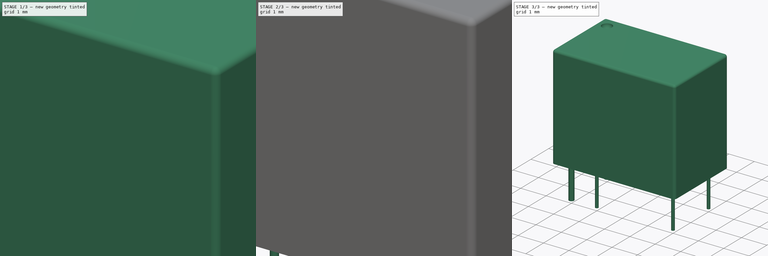
[diagram: build sequence overview — one tinted view per stage of 3, left to right]
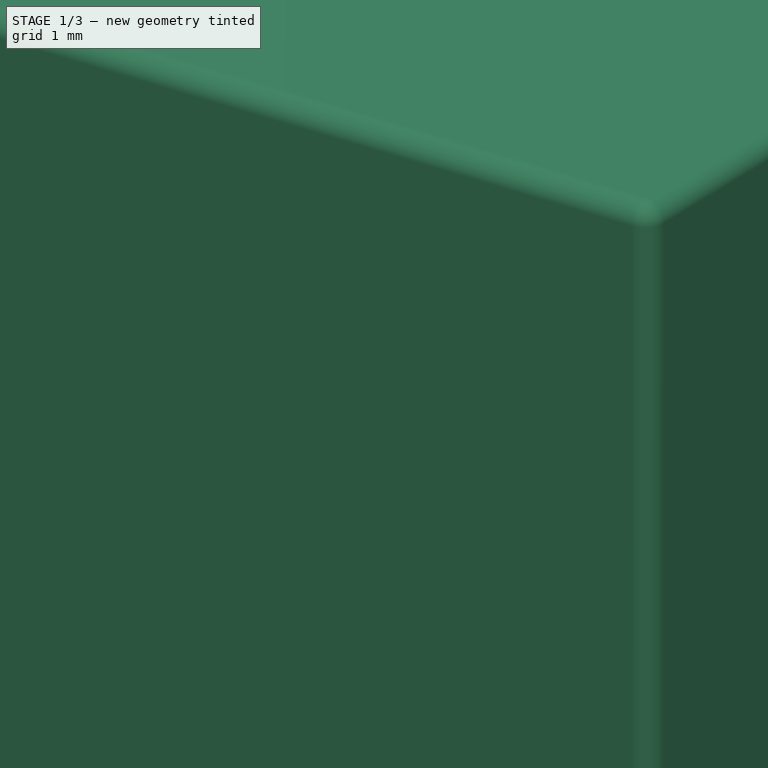
[diagram: stage 1 of 3 — iso view after this stage's code; geometry added in this stage tinted green]
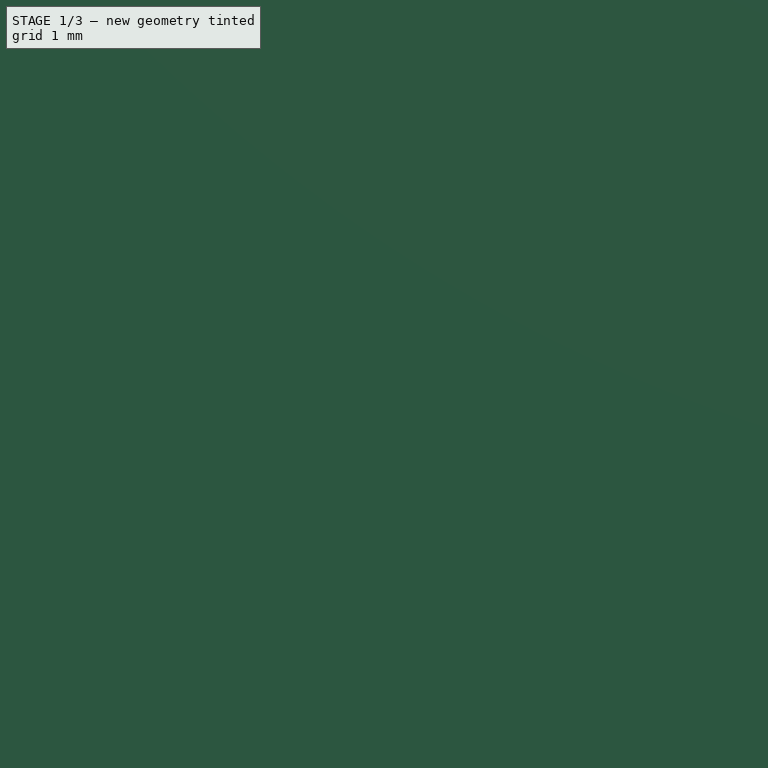
[diagram: stage 1 of 3 — front view after this stage's code; geometry added in this stage tinted green]
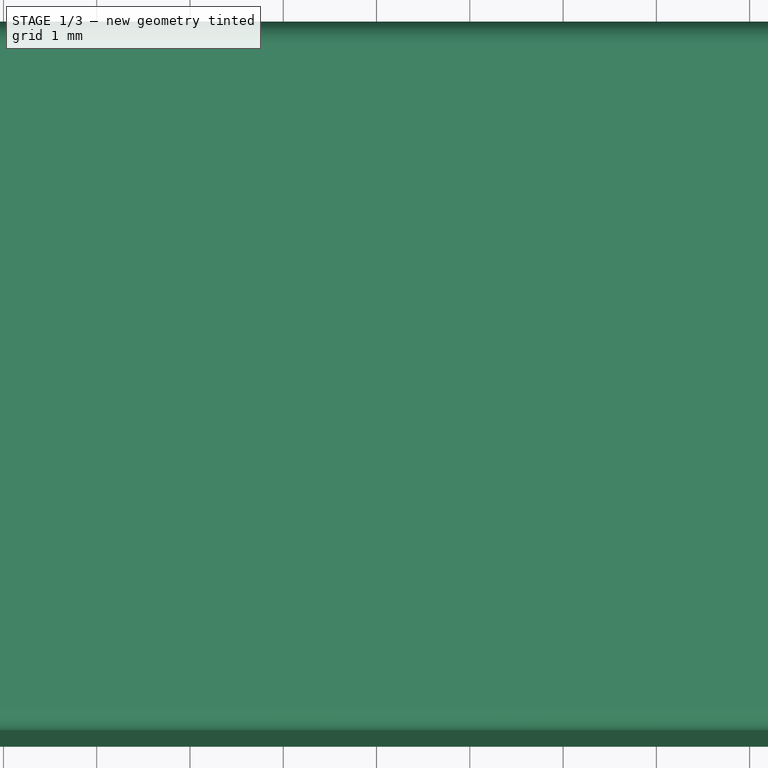
[diagram: stage 1 of 3 — top view after this stage's code; geometry added in this stage tinted green]
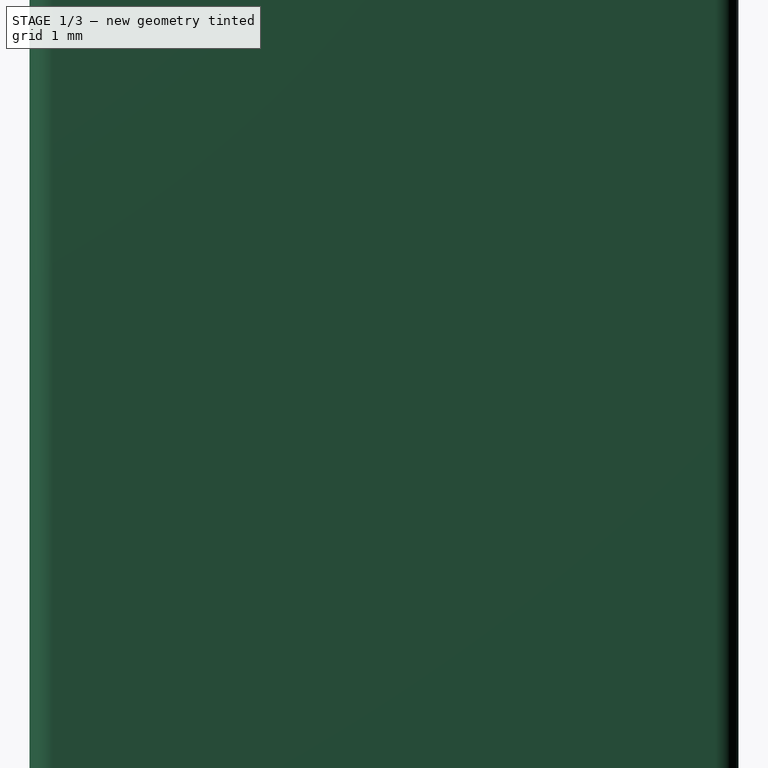
[diagram: stage 1 of 3 — right view after this stage's code; geometry added in this stage tinted green]
FCSTD DOCUMENT  (FreeCAD 0.17R13519 (Git))
Label: Relay_SPDT_HsinDa_Y14
License: Other
LicenseURL: https://opensource.org/licenses/MIT
objects: Sketcher::SketchObject×2, PartDesign::Pad×1, Part::Extrusion×1, PartDesign::Fillet×1, PartDesign::SubtractiveSphere×1, PartDesign::Body×1, App::Part×1, Part::Fuse×1, Part::FeaturePython×1
note: 11 computed .brp shape members not serialized (recipe doc carries the construction recipe); baked Part::Feature solids carry a one-line shape summary decoded from their .brp

FEATURE [Sketcher::SketchObject] Sketch
  MapMode = 5
  Support = -> [XY_Plane001]
  sketch-geometry (4):
    g0: LineSegment StartX=-1.07 StartY=1.26 StartZ=0 EndX=11.23 EndY=1.26 EndZ=0
    g1: LineSegment StartX=11.23 StartY=1.26 StartZ=0 EndX=11.23 EndY=-6.34 EndZ=0
    g2: LineSegment StartX=11.23 StartY=-6.34 StartZ=0 EndX=-1.07 EndY=-6.34 EndZ=0
    g3: LineSegment StartX=-1.07 StartY=-6.34 StartZ=0 EndX=-1.07 EndY=1.26 EndZ=0
  constraints (12):
    c: Coincident(g0,g1)
    c: Coincident(g1,g2)
    c: Coincident(g2,g3)
    c: Coincident(g3,g0)
    c: Horizontal(g0)
    c: Horizontal(g2)
    c: Vertical(g1)
    c: Vertical(g3)
    c: DistanceX(g0,g0) = 12.3
    c: DistanceY(g1,g1) = 7.6
    c: DistanceY(g-1,g0) = 1.26
    c: DistanceX(g0,g-1) = 1.07
FEATURE [Sketcher::SketchObject] Sketch001
  MapMode = 5
  sketch-geometry (6):
    g0: Circle CenterX=0 CenterY=0 CenterZ=0 NormalX=0 NormalY=0 NormalZ=1 AngleXU=0 Radius=0.25
    g1: Circle CenterX=2.54 CenterY=0 CenterZ=0 NormalX=0 NormalY=0 NormalZ=1 AngleXU=0 Radius=0.15
    g2: Circle CenterX=10.16 CenterY=0 CenterZ=0 NormalX=0 NormalY=0 NormalZ=1 AngleXU=0 Radius=0.15
    g3: Circle CenterX=10.16 CenterY=-5.08 CenterZ=0 NormalX=0 NormalY=0 NormalZ=1 AngleXU=0 Radius=0.15
    g4: Circle CenterX=0 CenterY=-5.08 CenterZ=0 NormalX=0 NormalY=0 NormalZ=1 AngleXU=0 Radius=0.25
    g5: Circle CenterX=2.54 CenterY=-5.08 CenterZ=0 NormalX=0 NormalY=0 NormalZ=1 AngleXU=0 Radius=0.15
  constraints (17):
    c: Coincident(g0,g-1)
    c: DistanceX(g-1,g1) = 2.54
    c: DistanceX(g1,g2) = 7.62
    c: PointOnObject(g1,g-1)
    c: PointOnObject(g2,g-1)
    c: PointOnObject(g4,g-2)
    c: DistanceY(g5,g-1) = 5.08
    c: DistanceY(g4,g-1) = 5.08
    c: DistanceY(g3,g-1) = 5.08
    c: DistanceX(g4,g5) = 2.54
    c: DistanceX(g5,g3) = 7.62
    c: Radius(g5) = 0.15
    c: Equal(g5,g3)
    c: Equal(g5,g2)
    c: Equal(g5,g1)
    c: Radius(g4) = 0.25
    c: Equal(g4,g0)
FEATURE [PartDesign::Pad] Pad
  Length = 10.3
  Length2 = 100
  Profile = -> Sketch
  Type = 0
FEATURE [PartDesign::Fillet] Fillet
  Base = -> Pad [Face6,Edge2,Edge1,Edge5,Edge8]
  BaseFeature = -> Pad
  Radius = 0.25
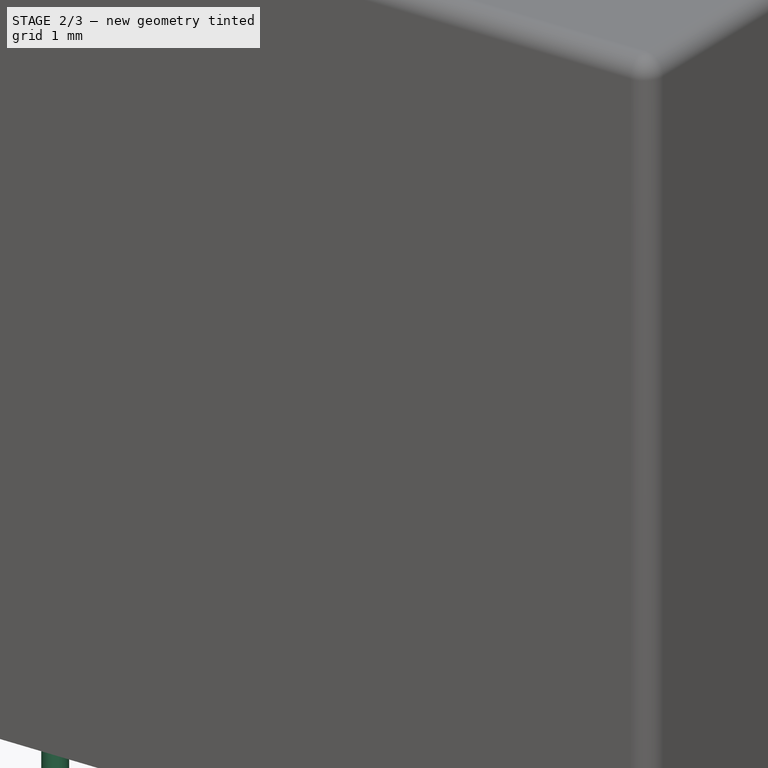
[diagram: stage 2 of 3 — iso view after this stage's code; geometry added in this stage tinted green]
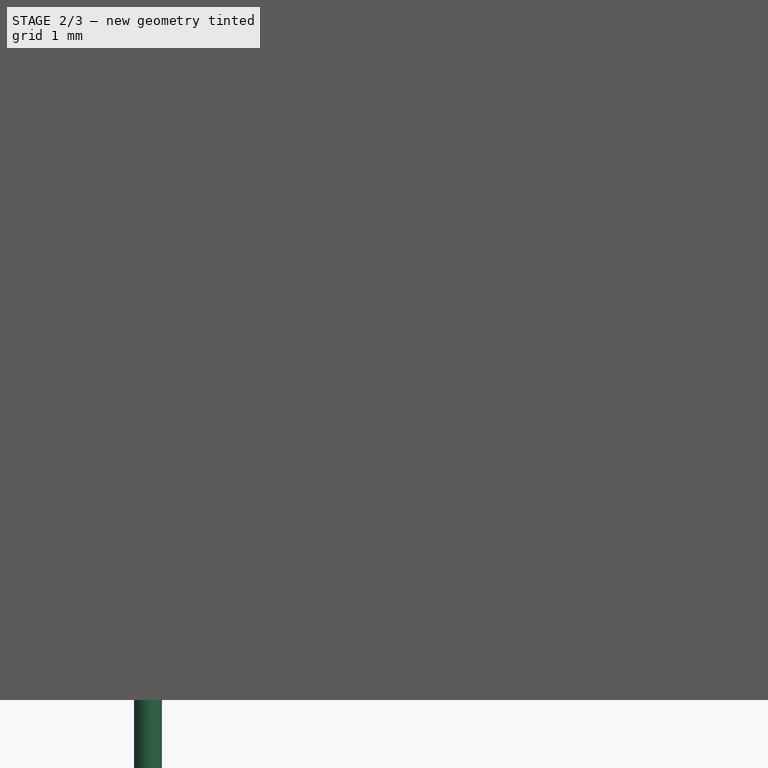
[diagram: stage 2 of 3 — front view after this stage's code; geometry added in this stage tinted green]
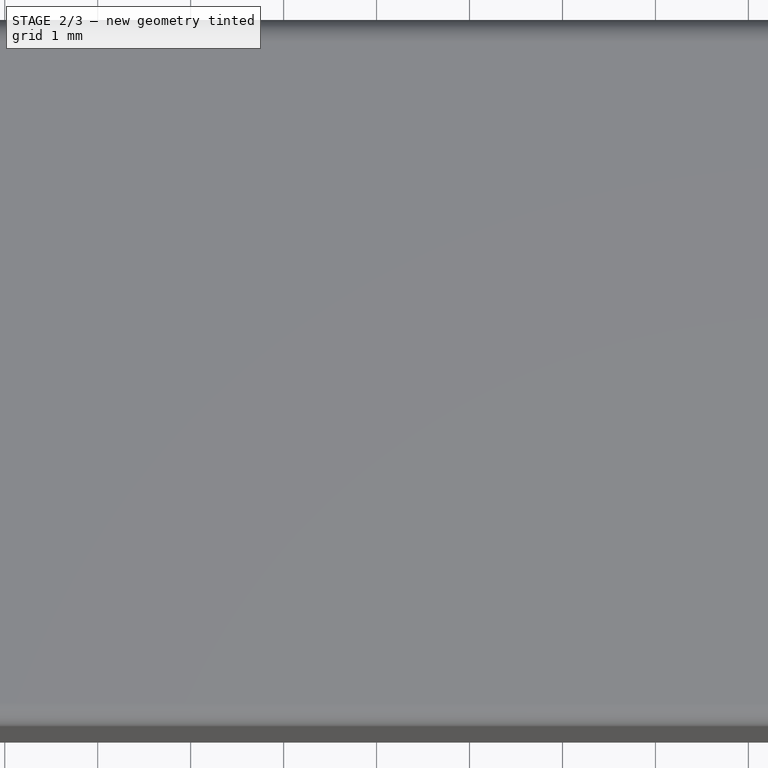
[diagram: stage 2 of 3 — top view after this stage's code; geometry added in this stage tinted green]
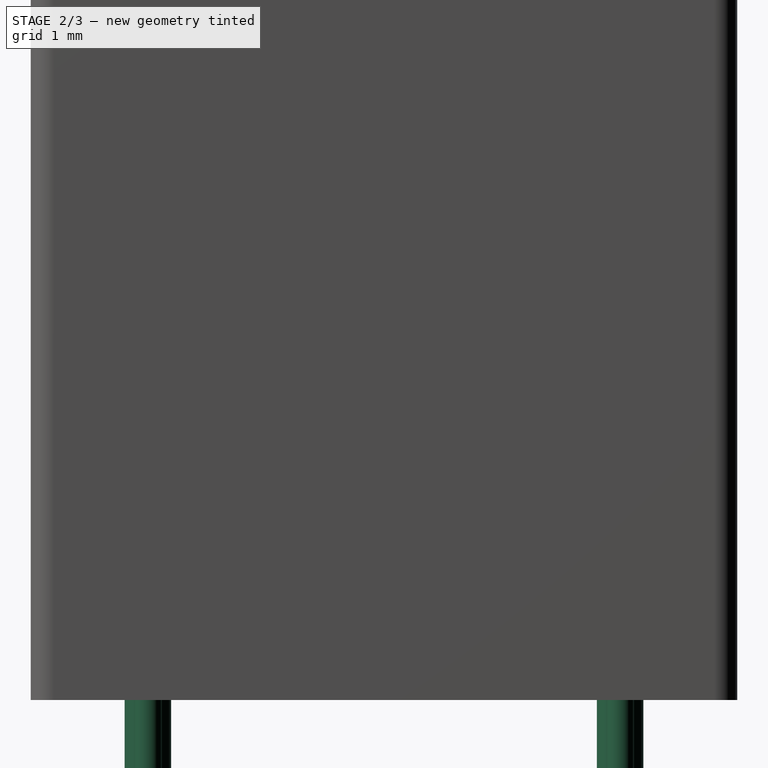
[diagram: stage 2 of 3 — right view after this stage's code; geometry added in this stage tinted green]
FEATURE [Part::Extrusion] Extrude
  Base = -> Sketch001
  Dir = (0,0,1)
  DirMode = 2
  FaceMakerClass = Part::FaceMakerBullseye
  LengthFwd = 3.5
  LengthRev = 0
  Reversed = true
  Solid = true
  Symmetric = false
FEATURE [PartDesign::SubtractiveSphere] Sphere
  Angle1 = -90
  Angle2 = 90
  Angle3 = 360
  AttacherType = Attacher::AttachEngine3D
  BaseFeature = -> Fillet
  MapMode = 5
  Placement = pos=(0,0,10.3) rot=(0,0,1;0rad)
  Radius = 0.5
  Support = -> [Fillet]
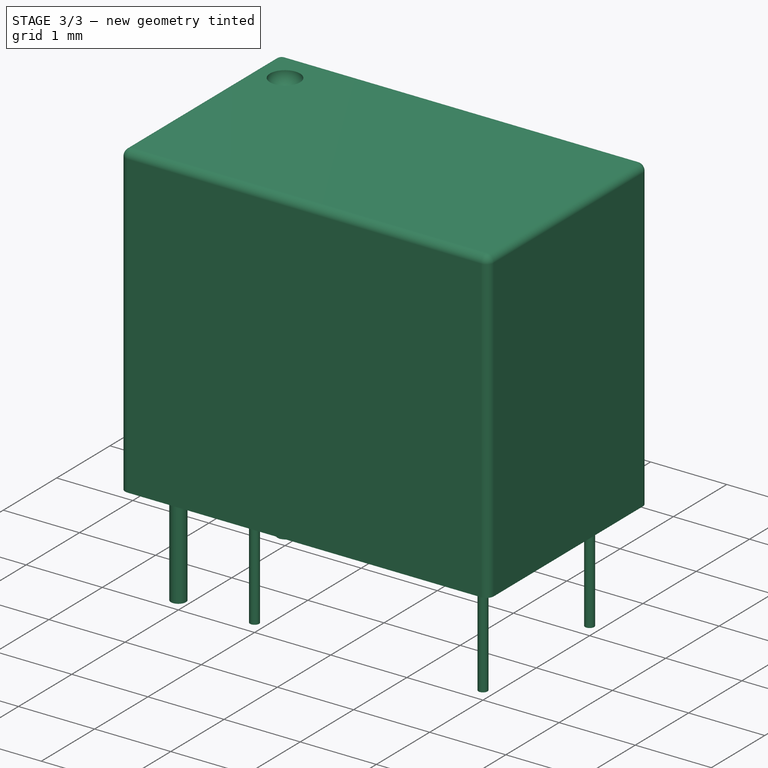
[diagram: stage 3 of 3 — iso view after this stage's code; geometry added in this stage tinted green]
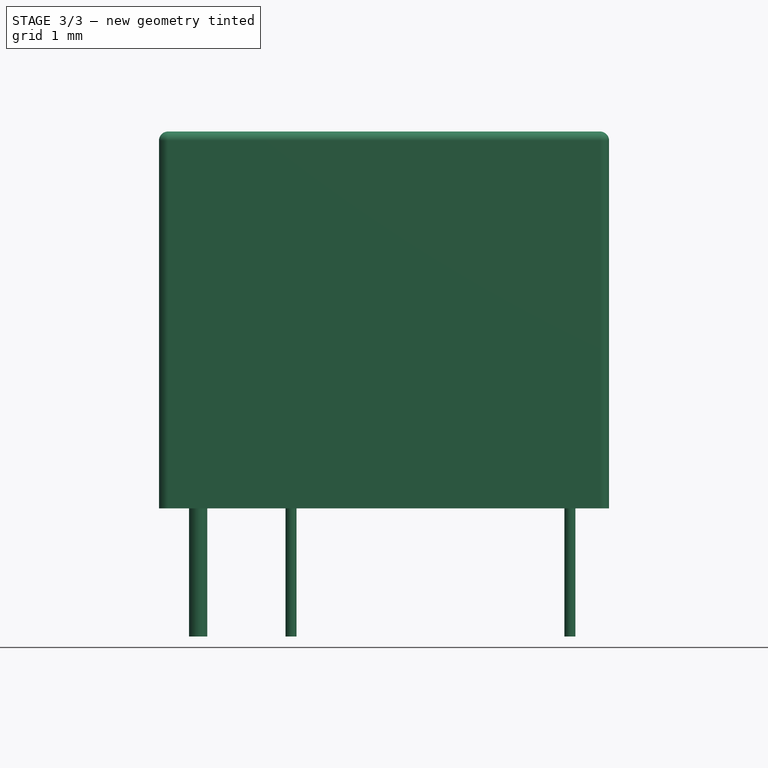
[diagram: stage 3 of 3 — front view after this stage's code; geometry added in this stage tinted green]
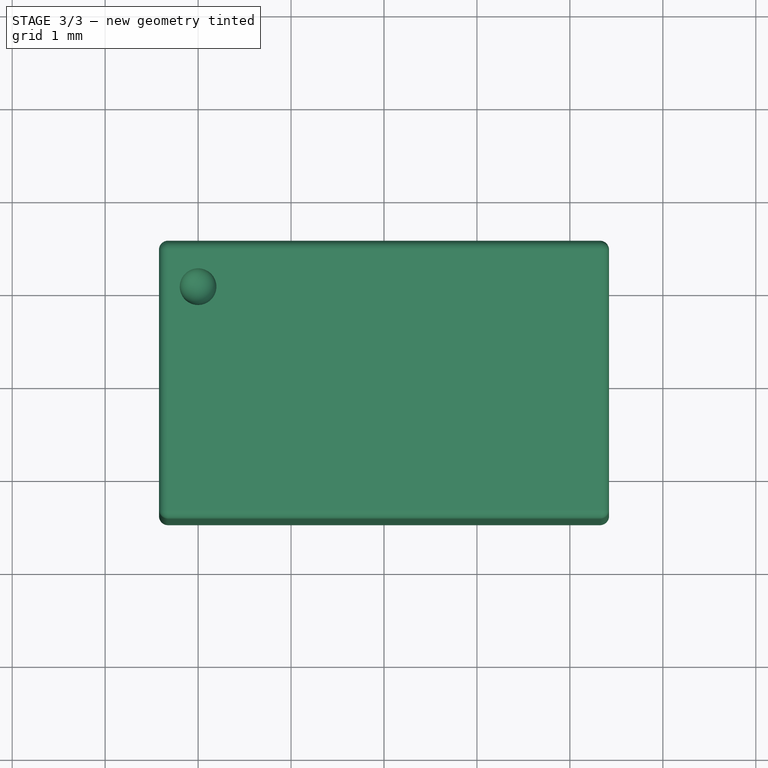
[diagram: stage 3 of 3 — top view after this stage's code; geometry added in this stage tinted green]
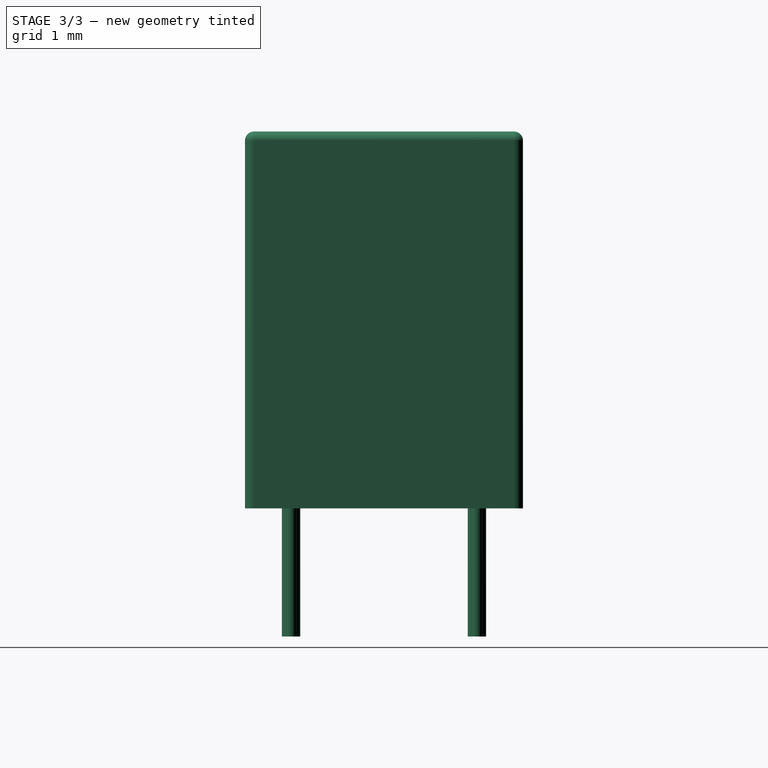
[diagram: stage 3 of 3 — right view after this stage's code; geometry added in this stage tinted green]
FEATURE [PartDesign::Body] PadBody
  Group = -> [Sketch,Pad,Fillet,Sphere]
  Origin = -> Origin001
  Tip = -> Sphere
FEATURE [App::Part] Part
  Group = -> [PadBody]
  License = CC BY 3.0
  LicenseURL = http://creativecommons.org/licenses/by/3.0/
  Origin = -> Origin
FEATURE [Part::Fuse] Fusion
  Base = -> Extrude
  Tool = -> Sphere
FEATURE [Part::FeaturePython] Scale  # Draft clone (typed FeaturePython)
  Fuse = false
  Objects = -> [Fusion]
  Scale = (0.3937,0.3937,0.3937)
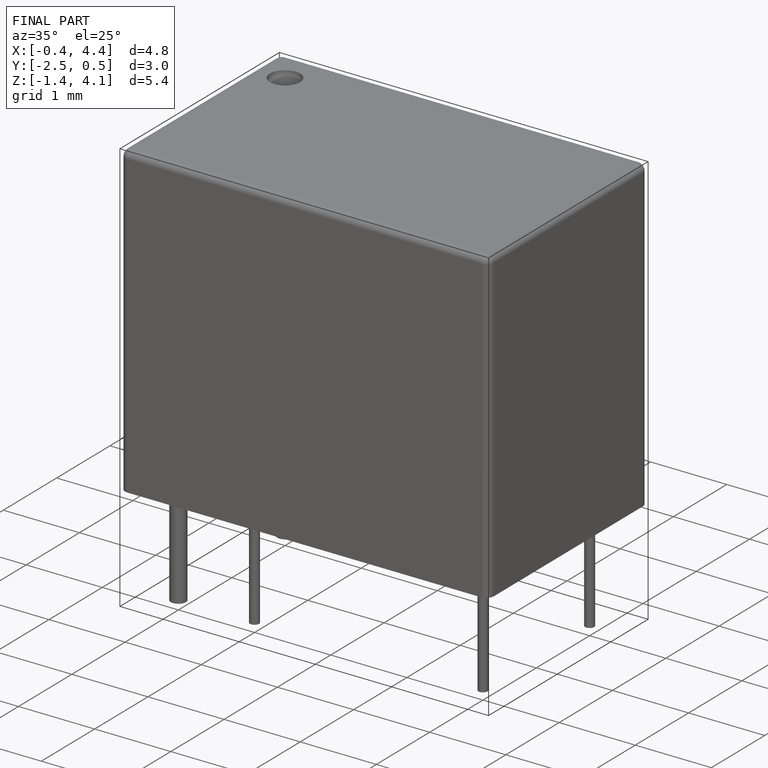
[diagram: finished part — iso view with bounding-box wireframe]
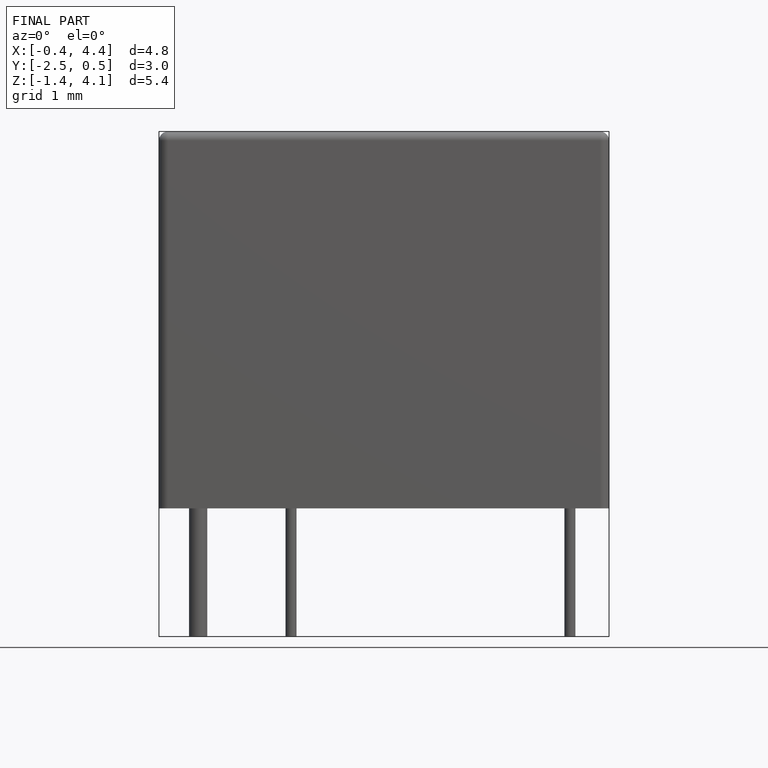
[diagram: finished part — front view with bounding-box wireframe]
